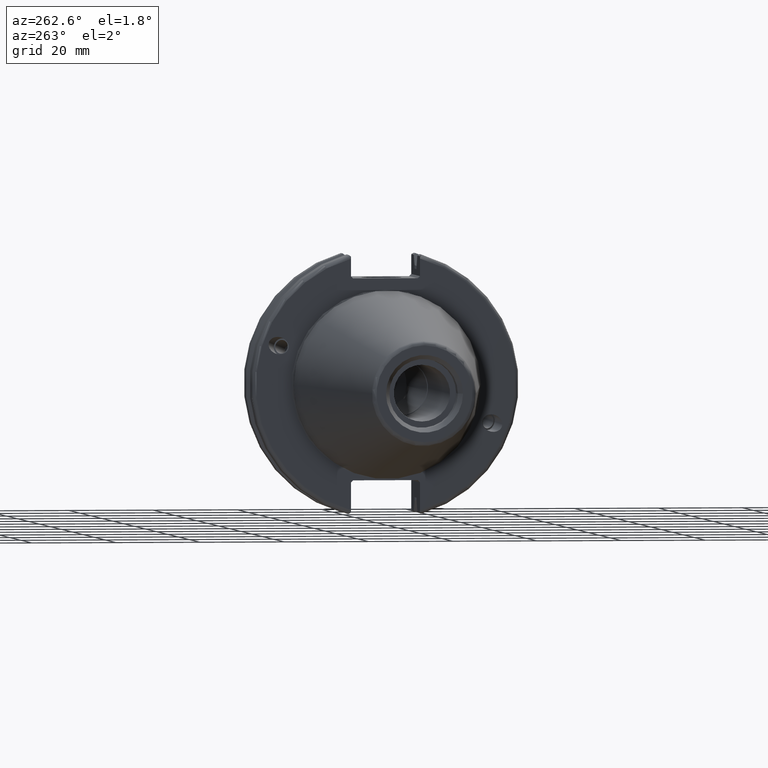
[diagram: clean part render]
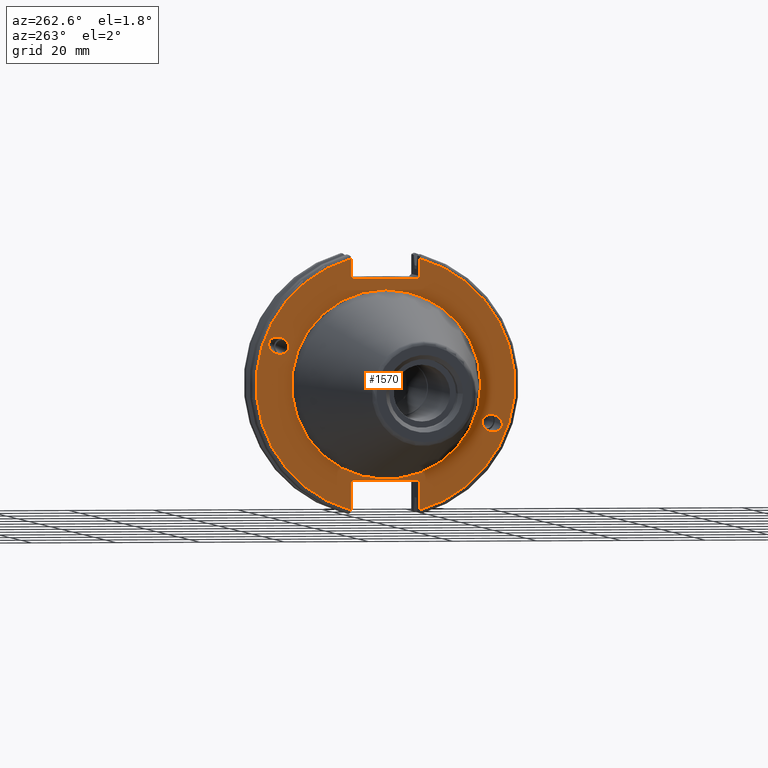
[diagram: same view with one face highlighted and labeled with its STEP entity id]
A machine part, auxiliary view. The second image highlights one B-rep face of the part: STEP entity #1570.
In plain terms, the highlighted planar face has unit normal (-1, 0, 0).
Its self-contained STEP definition (entity closure, byte-faithful):
#73=FACE_BOUND('',#289,.T.);
#74=FACE_BOUND('',#290,.T.);
#75=FACE_BOUND('',#291,.T.);
#114=PLANE('',#1754);
#185=FACE_OUTER_BOUND('',#288,.T.);
#288=EDGE_LOOP('',(#1254,#1255,#1256,#1257,#1258,#1259,#1260,#1261,#1262,
#1263,#1264,#1265));
#289=EDGE_LOOP('',(#1266));
#290=EDGE_LOOP('',(#1267));
#291=EDGE_LOOP('',(#1268));
#387=CIRCLE('',#1752,22.3);
#389=CIRCLE('',#1755,30.75);
#390=CIRCLE('',#1756,30.75);
#463=LINE('',#2782,#559);
#464=LINE('',#2784,#560);
#465=LINE('',#2786,#561);
#466=LINE('',#2788,#562);
#467=LINE('',#2790,#563);
#468=LINE('',#2794,#564);
#469=LINE('',#2796,#565);
#470=LINE('',#2798,#566);
#471=LINE('',#2800,#567);
#472=LINE('',#2801,#568);
#559=VECTOR('',#2111,10.);
#560=VECTOR('',#2112,10.);
#561=VECTOR('',#2113,10.);
#562=VECTOR('',#2114,10.);
#563=VECTOR('',#2115,10.);
#564=VECTOR('',#2118,10.);
#565=VECTOR('',#2119,10.);
#566=VECTOR('',#2120,10.);
#567=VECTOR('',#2121,10.);
#568=VECTOR('',#2122,10.);
#616=ELLIPSE('',#1701,2.44154917752292,2.00000000000001);
#625=ELLIPSE('',#1744,2.44154917752292,2.00000000000001);
#683=VERTEX_POINT('',#2575);
#723=VERTEX_POINT('',#2758);
#728=VERTEX_POINT('',#2773);
#729=VERTEX_POINT('',#2778);
#730=VERTEX_POINT('',#2779);
#731=VERTEX_POINT('',#2781);
#732=VERTEX_POINT('',#2783);
#733=VERTEX_POINT('',#2785);
#734=VERTEX_POINT('',#2787);
#735=VERTEX_POINT('',#2789);
#736=VERTEX_POINT('',#2791);
#737=VERTEX_POINT('',#2793);
#738=VERTEX_POINT('',#2795);
#739=VERTEX_POINT('',#2797);
#740=VERTEX_POINT('',#2799);
#858=EDGE_CURVE('',#683,#683,#616,.T.);
#914=EDGE_CURVE('',#723,#723,#625,.T.);
#921=EDGE_CURVE('',#728,#728,#387,.T.);
#923=EDGE_CURVE('',#729,#730,#389,.T.);
#924=EDGE_CURVE('',#729,#731,#463,.T.);
#925=EDGE_CURVE('',#732,#731,#464,.T.);
#926=EDGE_CURVE('',#732,#733,#465,.T.);
#927=EDGE_CURVE('',#734,#733,#466,.T.);
#928=EDGE_CURVE('',#734,#735,#467,.T.);
#929=EDGE_CURVE('',#736,#735,#390,.T.);
#930=EDGE_CURVE('',#736,#737,#468,.T.);
#931=EDGE_CURVE('',#738,#737,#469,.T.);
#932=EDGE_CURVE('',#738,#739,#470,.T.);
#933=EDGE_CURVE('',#740,#739,#471,.T.);
#934=EDGE_CURVE('',#740,#730,#472,.T.);
#1254=ORIENTED_EDGE('',*,*,#923,.F.);
#1255=ORIENTED_EDGE('',*,*,#924,.T.);
#1256=ORIENTED_EDGE('',*,*,#925,.F.);
#1257=ORIENTED_EDGE('',*,*,#926,.T.);
#1258=ORIENTED_EDGE('',*,*,#927,.F.);
#1259=ORIENTED_EDGE('',*,*,#928,.T.);
#1260=ORIENTED_EDGE('',*,*,#929,.F.);
#1261=ORIENTED_EDGE('',*,*,#930,.T.);
#1262=ORIENTED_EDGE('',*,*,#931,.F.);
#1263=ORIENTED_EDGE('',*,*,#932,.T.);
#1264=ORIENTED_EDGE('',*,*,#933,.F.);
#1265=ORIENTED_EDGE('',*,*,#934,.T.);
#1266=ORIENTED_EDGE('',*,*,#858,.T.);
#1267=ORIENTED_EDGE('',*,*,#914,.T.);
#1268=ORIENTED_EDGE('',*,*,#921,.F.);
#1570=ADVANCED_FACE('',(#185,#73,#74,#75),#114,.T.);
#1701=AXIS2_PLACEMENT_3D('',#2577,#1982,#1983);
#1744=AXIS2_PLACEMENT_3D('',#2760,#2085,#2086);
#1752=AXIS2_PLACEMENT_3D('',#2775,#2103,#2104);
#1754=AXIS2_PLACEMENT_3D('',#2777,#2107,#2108);
#1755=AXIS2_PLACEMENT_3D('',#2780,#2109,#2110);
#1756=AXIS2_PLACEMENT_3D('',#2792,#2116,#2117);
#1982=DIRECTION('center_axis',(1.,0.,0.));
#1983=DIRECTION('ref_axis',(5.68400912649E-17,-0.939692620785909,-0.342020143325667));
#2085=DIRECTION('center_axis',(1.,0.,0.));
#2086=DIRECTION('ref_axis',(5.68400912649E-17,0.939692620785909,0.342020143325667));
#2103=DIRECTION('center_axis',(-1.,0.,0.));
#2104=DIRECTION('ref_axis',(0.,-1.,1.83697019872103E-16));
#2107=DIRECTION('center_axis',(-1.,0.,0.));
#2108=DIRECTION('ref_axis',(0.,0.,1.));
#2109=DIRECTION('center_axis',(1.,0.,0.));
#2110=DIRECTION('ref_axis',(0.,-1.,1.60812264967664E-16));
#2111=DIRECTION('',(0.,0.,-1.));
#2112=DIRECTION('',(0.,-0.70710678118655,0.707106781186545));
#2113=DIRECTION('',(0.,1.,0.));
#2114=DIRECTION('',(0.,-0.707106781186549,-0.707106781186546));
#2115=DIRECTION('',(0.,0.,1.));
#2116=DIRECTION('center_axis',(1.,0.,0.));
#2117=DIRECTION('ref_axis',(0.,1.,1.60812264967664E-16));
#2118=DIRECTION('',(0.,0.,1.));
#2119=DIRECTION('',(0.,0.707106781186549,-0.707106781186546));
#2120=DIRECTION('',(0.,-1.,0.));
#2121=DIRECTION('',(0.,0.707106781186549,0.707106781186546));
#2122=DIRECTION('',(0.,0.,-1.));
#2575=CARTESIAN_POINT('',(3.175,-23.0773950158153,-8.39948487016));
#2577=CARTESIAN_POINT('Origin',(3.175,-25.3717007612195,-9.23454386979305));
#2758=CARTESIAN_POINT('',(3.175,23.0773950158153,8.39948487016));
#2760=CARTESIAN_POINT('Origin',(3.175,25.3717007612195,9.23454386979306));
#2773=CARTESIAN_POINT('',(3.175,-2.7309623620986E-15,22.3));
#2775=CARTESIAN_POINT('Origin',(3.175,0.,0.));
#2777=CARTESIAN_POINT('Origin',(3.175,31.75,0.));
#2778=CARTESIAN_POINT('',(3.175,-8.18999999999999,29.6392712461019));
#2779=CARTESIAN_POINT('',(3.175,-8.19,-29.6392712461019));
#2780=CARTESIAN_POINT('Origin',(3.175,0.,0.));
#2781=CARTESIAN_POINT('',(3.175,-8.18999999999999,25.5));
#2782=CARTESIAN_POINT('',(3.175,-8.18999999999999,12.5));
#2783=CARTESIAN_POINT('',(3.175,-7.68999999999999,25.));
#2784=CARTESIAN_POINT('',(3.175,8.29500000000007,9.01500000000004));
#2785=CARTESIAN_POINT('',(3.175,7.69,25.));
#2786=CARTESIAN_POINT('',(3.175,15.875,25.));
#2787=CARTESIAN_POINT('',(3.175,8.19,25.5));
#2788=CARTESIAN_POINT('',(3.175,7.58000000000002,24.89));
#2789=CARTESIAN_POINT('',(3.175,8.19,29.6392712461019));
#2790=CARTESIAN_POINT('',(3.175,8.19,12.5));
#2791=CARTESIAN_POINT('',(3.175,8.18999999999999,-29.6392712461019));
#2792=CARTESIAN_POINT('Origin',(3.175,0.,0.));
#2793=CARTESIAN_POINT('',(3.175,8.18999999999999,-23.1));
#2794=CARTESIAN_POINT('',(3.175,8.18999999999999,-11.3));
#2795=CARTESIAN_POINT('',(3.175,7.69,-22.6));
#2796=CARTESIAN_POINT('',(3.175,8.18000000000002,-23.09));
#2797=CARTESIAN_POINT('',(3.175,-7.69,-22.6));
#2798=CARTESIAN_POINT('',(3.175,15.875,-22.6));
#2799=CARTESIAN_POINT('',(3.175,-8.19,-23.1));
#2800=CARTESIAN_POINT('',(3.175,7.69500000000004,-7.21500000000002));
#2801=CARTESIAN_POINT('',(3.175,-8.19,-11.3));